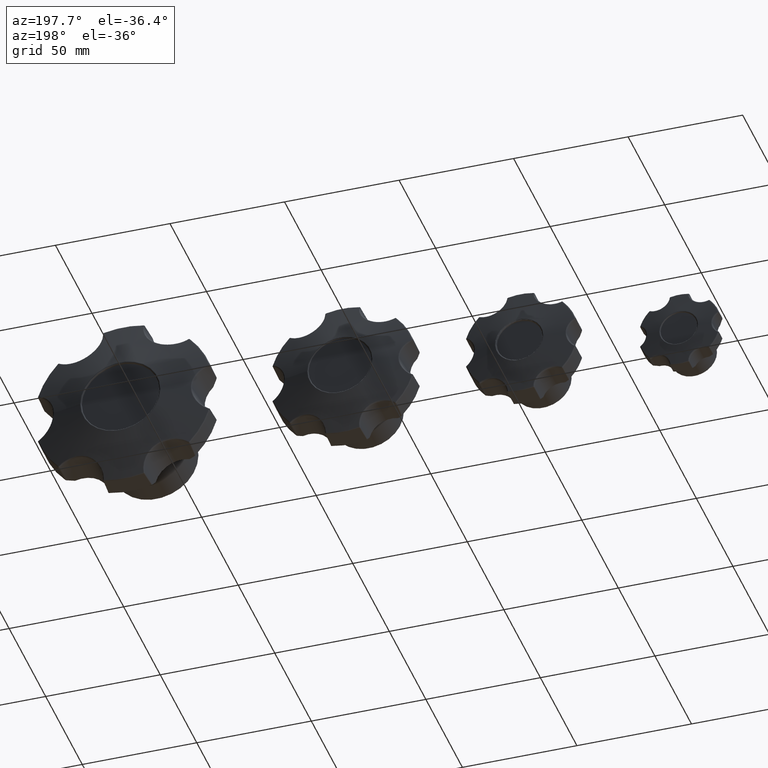
[diagram: clean part render]
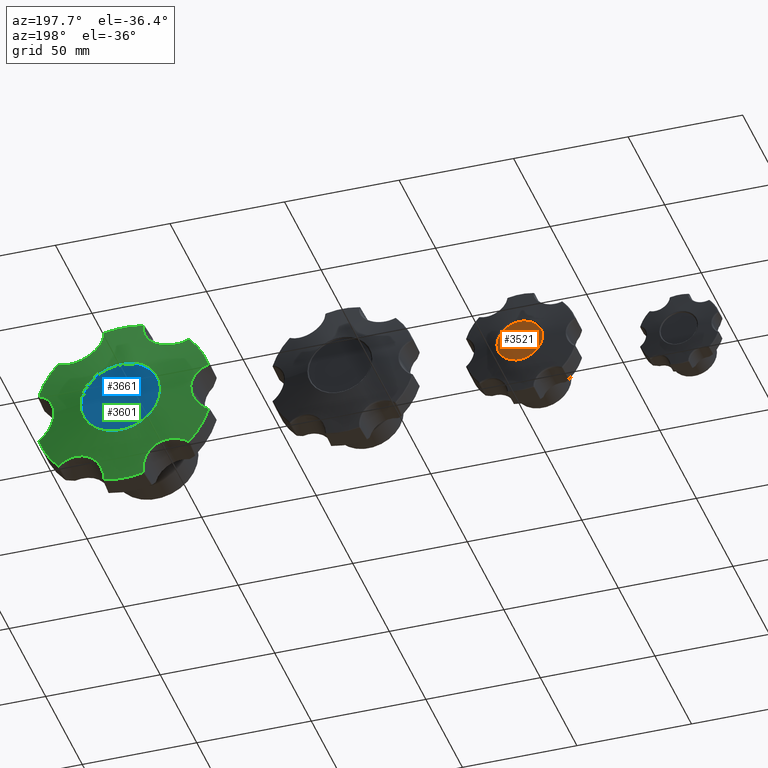
[diagram: same view with three faces highlighted in distinct colors, each labeled with its STEP entity id]
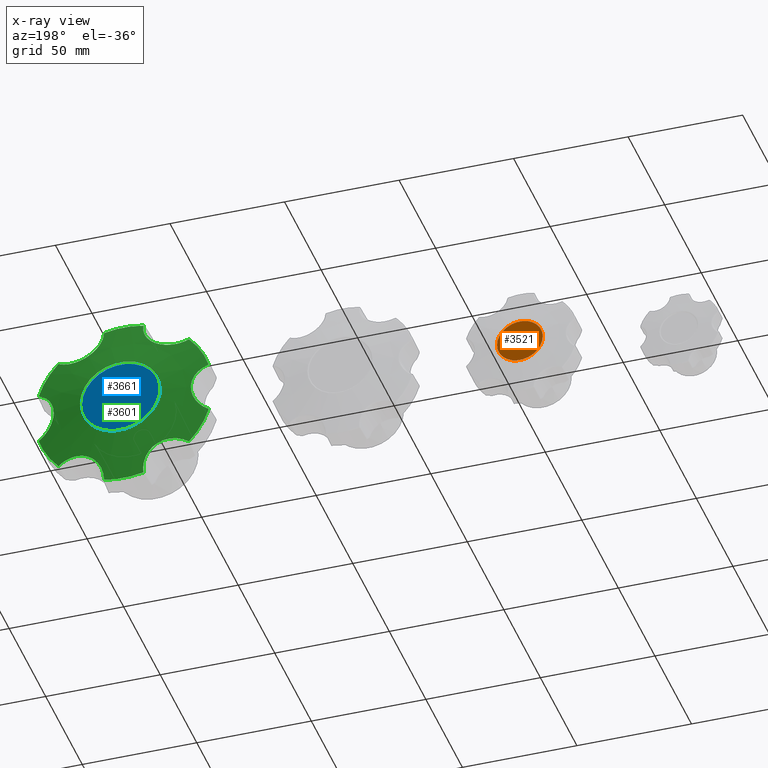
[diagram: x-ray of the same camera — body ghosted, the three highlighted faces saturated]
A machine part, auxiliary view with three faces highlighted in distinct colors.
The next image is the same camera in x-ray (body ghosted, the three faces saturated) — at least one of them is partly hidden behind the body in this view.
Their STEP definitions:

[orange] entity #3521 — the highlighted planar face has unit normal (0, 1, -0).
#546=PLANE('',#3909);
#706=FACE_OUTER_BOUND('',#975,.T.);
#975=EDGE_LOOP('',(#2773));
#1277=CIRCLE('',#3908,10.);
#1594=VERTEX_POINT('',#6651);
#2017=EDGE_CURVE('',#1594,#1594,#1277,.T.);
#2773=ORIENTED_EDGE('',*,*,#2017,.F.);
#3521=ADVANCED_FACE('',(#706),#546,.T.);
#3908=AXIS2_PLACEMENT_3D('',#6652,#4700,#4701);
#3909=AXIS2_PLACEMENT_3D('',#6653,#4702,#4703);
#4700=DIRECTION('center_axis',(0.,-1.,0.));
#4701=DIRECTION('ref_axis',(-1.,0.,0.));
#4702=DIRECTION('center_axis',(0.,1.,0.));
#4703=DIRECTION('ref_axis',(0.,0.,1.));
#6651=CARTESIAN_POINT('',(10.,12.,-1.22464679914735E-15));
#6652=CARTESIAN_POINT('Origin',(0.,12.,0.));
#6653=CARTESIAN_POINT('Origin',(-4.72128241470665E-16,12.,-1.85037170770859E-16));

[blue] entity #3661 — the highlighted planar face has unit normal (-0, 1, 0).
#557=PLANE('',#4165);
#846=FACE_OUTER_BOUND('',#1138,.T.);
#1138=EDGE_LOOP('',(#3363));
#1373=CIRCLE('',#4064,17.);
#1695=VERTEX_POINT('',#7874);
#2179=EDGE_CURVE('',#1695,#1695,#1373,.T.);
#3363=ORIENTED_EDGE('',*,*,#2179,.F.);
#3661=ADVANCED_FACE('',(#846),#557,.T.);
#4064=AXIS2_PLACEMENT_3D('',#7875,#5012,#5013);
#4165=AXIS2_PLACEMENT_3D('',#8954,#5214,#5215);
#5012=DIRECTION('center_axis',(0.,-1.,0.));
#5013=DIRECTION('ref_axis',(-1.,0.,0.));
#5214=DIRECTION('center_axis',(0.,1.,0.));
#5215=DIRECTION('ref_axis',(0.,0.,1.));
#7874=CARTESIAN_POINT('',(17.,16.,-2.0818995585505E-15));
#7875=CARTESIAN_POINT('Origin',(0.,16.,0.));
#8954=CARTESIAN_POINT('Origin',(-1.04425478644796E-15,16.,4.35381578284375E-16));

[green] entity #3601 — the highlighted conical surface has half-angle 77.335 deg.
#379=B_SPLINE_CURVE_WITH_KNOTS('',3,(#7811,#7812,#7813,#7814,#7815,#7816,
#7817,#7818),.UNSPECIFIED.,.F.,.F.,(4,1,1,1,1,4),(-4.9127653080631,-4.50012396132171,
-3.67484126783893,-3.26219992109755,-2.84955857435616,-2.02427588087338),
 .UNSPECIFIED.);
#380=B_SPLINE_CURVE_WITH_KNOTS('',3,(#7822,#7823,#7824,#7825,#7826,#7827,
#7828,#7829),.UNSPECIFIED.,.F.,.F.,(4,1,1,1,1,4),(-3.34477268582341,-2.51948999234064,
-2.10684864559925,-1.69420729885786,-0.868924605375088,-0.4562832586337),
 .UNSPECIFIED.);
#381=B_SPLINE_CURVE_WITH_KNOTS('',3,(#7833,#7834,#7835,#7836,#7837,#7838,
#7839,#7840),.UNSPECIFIED.,.F.,.F.,(4,1,1,1,1,4),(-3.37026583831914,-2.54499035380149,
-2.13235261154266,-1.71971486928383,-1.307077127025,-0.481801642507345),
 .UNSPECIFIED.);
#382=B_SPLINE_CURVE_WITH_KNOTS('',3,(#7844,#7845,#7846,#7847,#7848,#7849,
#7850,#7851),.UNSPECIFIED.,.F.,.F.,(4,1,1,1,1,4),(-4.91267726212397,-4.08739456053724,
-3.67475320974388,-3.26211185895052,-2.4368291573638,-2.02418780657044),
 .UNSPECIFIED.);
#383=B_SPLINE_CURVE_WITH_KNOTS('',3,(#7855,#7856,#7857,#7858,#7859,#7860,
#7861,#7862),.UNSPECIFIED.,.F.,.F.,(4,1,1,1,1,4),(-3.34467825808683,-2.51939555650011,
-2.10675420570675,-1.69411285491338,-0.868830153326659,-0.456188802533296),
 .UNSPECIFIED.);
#384=B_SPLINE_CURVE_WITH_KNOTS('',3,(#7865,#7866,#7867,#7868,#7869,#7870,
#7871,#7872),.UNSPECIFIED.,.F.,.F.,(4,1,1,1,1,4),(-3.37026584531466,-2.54499036200756,
-2.13235262035401,-1.71971487870047,-1.30707713704692,-0.481801653739826),
 .UNSPECIFIED.);
#533=CONICAL_SURFACE('',#4056,39.25,77.3349362349577);
#584=FACE_BOUND('',#1071,.T.);
#786=FACE_OUTER_BOUND('',#1070,.T.);
#1070=EDGE_LOOP('',(#3108,#3109,#3110,#3111,#3112,#3113,#3114,#3115,#3116,
#3117,#3118,#3119));
#1071=EDGE_LOOP('',(#3120));
#1366=CIRCLE('',#4055,17.6096256645305);
#1367=CIRCLE('',#4057,38.8596256645305);
#1368=CIRCLE('',#4058,38.8596256645305);
#1369=CIRCLE('',#4059,38.8596256645305);
#1370=CIRCLE('',#4060,38.8596256645305);
#1371=CIRCLE('',#4061,38.8596256645305);
#1372=CIRCLE('',#4062,38.8596256645305);
#1682=VERTEX_POINT('',#7804);
#1683=VERTEX_POINT('',#7807);
#1684=VERTEX_POINT('',#7808);
#1685=VERTEX_POINT('',#7810);
#1686=VERTEX_POINT('',#7819);
#1687=VERTEX_POINT('',#7821);
#1688=VERTEX_POINT('',#7830);
#1689=VERTEX_POINT('',#7832);
#1690=VERTEX_POINT('',#7841);
#1691=VERTEX_POINT('',#7843);
#1692=VERTEX_POINT('',#7852);
#1693=VERTEX_POINT('',#7854);
#1694=VERTEX_POINT('',#7863);
#2166=EDGE_CURVE('',#1682,#1682,#1366,.T.);
#2167=EDGE_CURVE('',#1683,#1684,#1367,.T.);
#2168=EDGE_CURVE('',#1685,#1683,#379,.T.);
#2169=EDGE_CURVE('',#1686,#1685,#1368,.T.);
#2170=EDGE_CURVE('',#1687,#1686,#380,.T.);
#2171=EDGE_CURVE('',#1688,#1687,#1369,.T.);
#2172=EDGE_CURVE('',#1689,#1688,#381,.T.);
#2173=EDGE_CURVE('',#1690,#1689,#1370,.T.);
#2174=EDGE_CURVE('',#1691,#1690,#382,.T.);
#2175=EDGE_CURVE('',#1692,#1691,#1371,.T.);
#2176=EDGE_CURVE('',#1693,#1692,#383,.T.);
#2177=EDGE_CURVE('',#1694,#1693,#1372,.T.);
#2178=EDGE_CURVE('',#1684,#1694,#384,.T.);
#3108=ORIENTED_EDGE('',*,*,#2167,.F.);
#3109=ORIENTED_EDGE('',*,*,#2168,.F.);
#3110=ORIENTED_EDGE('',*,*,#2169,.F.);
#3111=ORIENTED_EDGE('',*,*,#2170,.F.);
#3112=ORIENTED_EDGE('',*,*,#2171,.F.);
#3113=ORIENTED_EDGE('',*,*,#2172,.F.);
#3114=ORIENTED_EDGE('',*,*,#2173,.F.);
#3115=ORIENTED_EDGE('',*,*,#2174,.F.);
#3116=ORIENTED_EDGE('',*,*,#2175,.F.);
#3117=ORIENTED_EDGE('',*,*,#2176,.F.);
#3118=ORIENTED_EDGE('',*,*,#2177,.F.);
#3119=ORIENTED_EDGE('',*,*,#2178,.F.);
#3120=ORIENTED_EDGE('',*,*,#2166,.F.);
#3601=ADVANCED_FACE('',(#786,#584),#533,.T.);
#4055=AXIS2_PLACEMENT_3D('',#7805,#4994,#4995);
#4056=AXIS2_PLACEMENT_3D('',#7806,#4996,#4997);
#4057=AXIS2_PLACEMENT_3D('',#7809,#4998,#4999);
#4058=AXIS2_PLACEMENT_3D('',#7820,#5000,#5001);
#4059=AXIS2_PLACEMENT_3D('',#7831,#5002,#5003);
#4060=AXIS2_PLACEMENT_3D('',#7842,#5004,#5005);
#4061=AXIS2_PLACEMENT_3D('',#7853,#5006,#5007);
#4062=AXIS2_PLACEMENT_3D('',#7864,#5008,#5009);
#4994=DIRECTION('center_axis',(0.,1.,0.));
#4995=DIRECTION('ref_axis',(-1.,0.,6.12323399573677E-17));
#4996=DIRECTION('center_axis',(0.,-1.,0.));
#4997=DIRECTION('ref_axis',(1.,0.,0.));
#4998=DIRECTION('center_axis',(0.,-1.,0.));
#4999=DIRECTION('ref_axis',(0.866025403784416,0.,-0.50000000000004));
#5000=DIRECTION('center_axis',(0.,-1.,0.));
#5001=DIRECTION('ref_axis',(7.7715611723761E-16,0.,-1.));
#5002=DIRECTION('center_axis',(0.,-1.,0.));
#5003=DIRECTION('ref_axis',(-0.866025403784415,0.,-0.500000000000041));
#5004=DIRECTION('center_axis',(0.,-1.,0.));
#5005=DIRECTION('ref_axis',(-0.866025403784415,0.,0.50000000000004));
#5006=DIRECTION('center_axis',(0.,-1.,0.));
#5007=DIRECTION('ref_axis',(-1.11022302462516E-16,0.,1.));
#5008=DIRECTION('center_axis',(0.,-1.,0.));
#5009=DIRECTION('ref_axis',(0.866025403784415,0.,0.500000000000041));
#7804=CARTESIAN_POINT('',(17.6096256645305,16.8630054686448,-2.15655717042504E-15));
#7805=CARTESIAN_POINT('Origin',(0.,16.8630054686448,1.07827858521252E-15));
#7806=CARTESIAN_POINT('Origin',(0.,12.,0.));
#7807=CARTESIAN_POINT('',(28.5100474728472,12.0877245697683,-26.4054482992328));
#7808=CARTESIAN_POINT('',(37.1228127618757,12.0877245697684,-11.4877012249695));
#7809=CARTESIAN_POINT('Origin',(-2.22044604925031E-15,12.0877245697684,
-3.33066907387547E-15));
#7810=CARTESIAN_POINT('',(8.61276528902862,12.0877245697683,-37.8931495242024));
#7811=CARTESIAN_POINT('Ctrl Pts',(8.61276528902866,12.0877245697684,-37.8931495242024));
#7812=CARTESIAN_POINT('Ctrl Pts',(8.52081143094316,12.3858808701532,-36.5534139379459));
#7813=CARTESIAN_POINT('Ctrl Pts',(8.85135212050141,13.2618700446335,-32.4857131165267));
#7814=CARTESIAN_POINT('Ctrl Pts',(11.8793069711898,14.1182554246375,-27.6024383388504));
#7815=CARTESIAN_POINT('Ctrl Pts',(16.7483274394415,14.1170891207779,-24.8022607942779));
#7816=CARTESIAN_POINT('Ctrl Pts',(22.2071668292262,13.5485050329062,-23.7133908983951));
#7817=CARTESIAN_POINT('Ctrl Pts',(26.2815231322232,12.6840339848879,-24.9064519668742));
#7818=CARTESIAN_POINT('Ctrl Pts',(28.5100474728472,12.0877245697684,-26.4054482992328));
#7819=CARTESIAN_POINT('',(-8.61276528902857,12.0877245697683,-37.8931495242024));
#7820=CARTESIAN_POINT('Origin',(-1.93481930480106E-15,12.0877245697684,
0.));
#7821=CARTESIAN_POINT('',(-28.5100474728472,12.0877245697683,-26.4054482992328));
#7822=CARTESIAN_POINT('Ctrl Pts',(-28.5100474728472,12.0877245697684,-26.4054482992328));
#7823=CARTESIAN_POINT('Ctrl Pts',(-26.2815231322232,12.6840339848879,-24.9064519668742));
#7824=CARTESIAN_POINT('Ctrl Pts',(-22.2071668292261,13.5485050329062,-23.7133908983951));
#7825=CARTESIAN_POINT('Ctrl Pts',(-16.7483274394415,14.1170891207779,-24.802260794278));
#7826=CARTESIAN_POINT('Ctrl Pts',(-11.8793069711897,14.1182554246375,-27.6024383388504));
#7827=CARTESIAN_POINT('Ctrl Pts',(-8.85135212050136,13.2618700446335,-32.4857131165267));
#7828=CARTESIAN_POINT('Ctrl Pts',(-8.52081143094311,12.3858808701532,-36.553413937946));
#7829=CARTESIAN_POINT('Ctrl Pts',(-8.61276528902861,12.0877245697684,-37.8931495242024));
#7830=CARTESIAN_POINT('',(-37.1228127618757,12.0877245697684,-11.4877012249695));
#7831=CARTESIAN_POINT('Origin',(0.,12.0877245697684,0.));
#7832=CARTESIAN_POINT('',(-37.1228127618757,12.0877245697684,11.4877012249695));
#7833=CARTESIAN_POINT('Ctrl Pts',(-37.1228127618757,12.0877245697684,11.4877012249695));
#7834=CARTESIAN_POINT('Ctrl Pts',(-34.7104418991623,12.6840191016671,10.3072701622004));
#7835=CARTESIAN_POINT('Ctrl Pts',(-31.6418425348443,13.5483827977127,7.37903167143705));
#7836=CARTESIAN_POINT('Ctrl Pts',(-29.8519910755587,14.1172250091702,2.1004505845468));
#7837=CARTESIAN_POINT('Ctrl Pts',(-29.8510606180871,14.117907696036,-2.10051779694955));
#7838=CARTESIAN_POINT('Ctrl Pts',(-31.6422335833546,13.5476945993915,-7.3785734581299));
#7839=CARTESIAN_POINT('Ctrl Pts',(-34.7104418991623,12.6840191016671,-10.3072701622004));
#7840=CARTESIAN_POINT('Ctrl Pts',(-37.1228127618757,12.0877245697684,-11.4877012249695));
#7841=CARTESIAN_POINT('',(-28.5100474728472,12.0877245697683,26.4054482992328));
#7842=CARTESIAN_POINT('Origin',(0.,12.0877245697684,0.));
#7843=CARTESIAN_POINT('',(-8.61276528902861,12.0877245697683,37.8931495242024));
#7844=CARTESIAN_POINT('Ctrl Pts',(-8.61276528902864,12.0877245697684,37.8931495242024));
#7845=CARTESIAN_POINT('Ctrl Pts',(-8.42885756313585,12.6840372020605,35.2136782100465));
#7846=CARTESIAN_POINT('Ctrl Pts',(-9.43281728207704,13.5485052244647,31.0886645410209));
#7847=CARTESIAN_POINT('Ctrl Pts',(-13.105225079384,14.1170896459052,26.905604593767));
#7848=CARTESIAN_POINT('Ctrl Pts',(-17.9647631467294,14.1182547398228,24.0890015490104));
#7849=CARTESIAN_POINT('Ctrl Pts',(-23.7077750734904,13.2618705602236,23.9083508463276));
#7850=CARTESIAN_POINT('Ctrl Pts',(-27.3957852550828,12.3858792900255,25.6559501011351));
#7851=CARTESIAN_POINT('Ctrl Pts',(-28.5100474728472,12.0877245697684,26.4054482992328));
#7852=CARTESIAN_POINT('',(8.6127652890286,12.0877245697683,37.8931495242024));
#7853=CARTESIAN_POINT('Origin',(-1.93481930480106E-15,12.0877245697684,
0.));
#7854=CARTESIAN_POINT('',(28.5100474728472,12.0877245697683,26.4054482992328));
#7855=CARTESIAN_POINT('Ctrl Pts',(28.5100474728472,12.0877245697684,26.4054482992328));
#7856=CARTESIAN_POINT('Ctrl Pts',(26.2815230373184,12.6840340102826,24.9064519030374));
#7857=CARTESIAN_POINT('Ctrl Pts',(22.2071666829638,13.548505054778,23.7133908997435));
#7858=CARTESIAN_POINT('Ctrl Pts',(16.7483274278344,14.1170891185463,24.8022608078688));
#7859=CARTESIAN_POINT('Ctrl Pts',(11.8793070238817,14.118255432116,27.6024382780093));
#7860=CARTESIAN_POINT('Ctrl Pts',(8.85135213814866,13.2618700496528,32.485713090349));
#7861=CARTESIAN_POINT('Ctrl Pts',(8.52081142608224,12.3858808859145,36.5534138671244));
#7862=CARTESIAN_POINT('Ctrl Pts',(8.61276528902863,12.0877245697684,37.8931495242024));
#7863=CARTESIAN_POINT('',(37.1228127618757,12.0877245697684,11.4877012249695));
#7864=CARTESIAN_POINT('Origin',(0.,12.0877245697684,-2.22044604925031E-15));
#7865=CARTESIAN_POINT('Ctrl Pts',(37.1228127618757,12.0877245697684,-11.4877012249695));
#7866=CARTESIAN_POINT('Ctrl Pts',(34.7104419032388,12.6840191006594,-10.3072701641951));
#7867=CARTESIAN_POINT('Ctrl Pts',(31.6418425347532,13.5483827978126,-7.37903167012131));
#7868=CARTESIAN_POINT('Ctrl Pts',(29.8519910760141,14.1172250090765,-2.10045058152922));
#7869=CARTESIAN_POINT('Ctrl Pts',(29.8510606197542,14.117907695589,2.10051779567588));
#7870=CARTESIAN_POINT('Ctrl Pts',(31.642233581566,13.5476945999803,7.37857345447499));
#7871=CARTESIAN_POINT('Ctrl Pts',(34.7104419032388,12.6840191006594,10.3072701641951));
#7872=CARTESIAN_POINT('Ctrl Pts',(37.1228127618757,12.0877245697684,11.4877012249695));